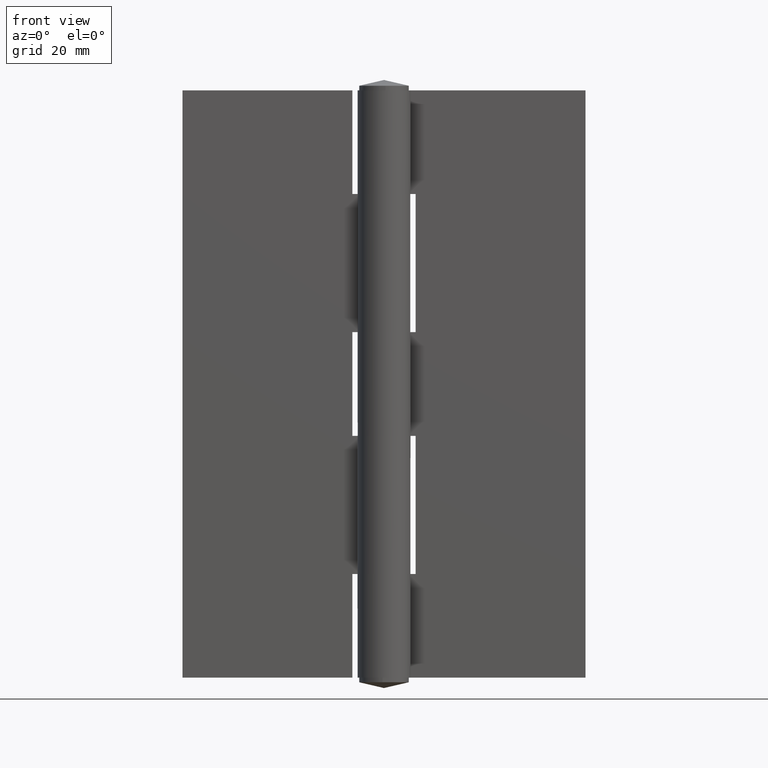
[diagram: clean part render]
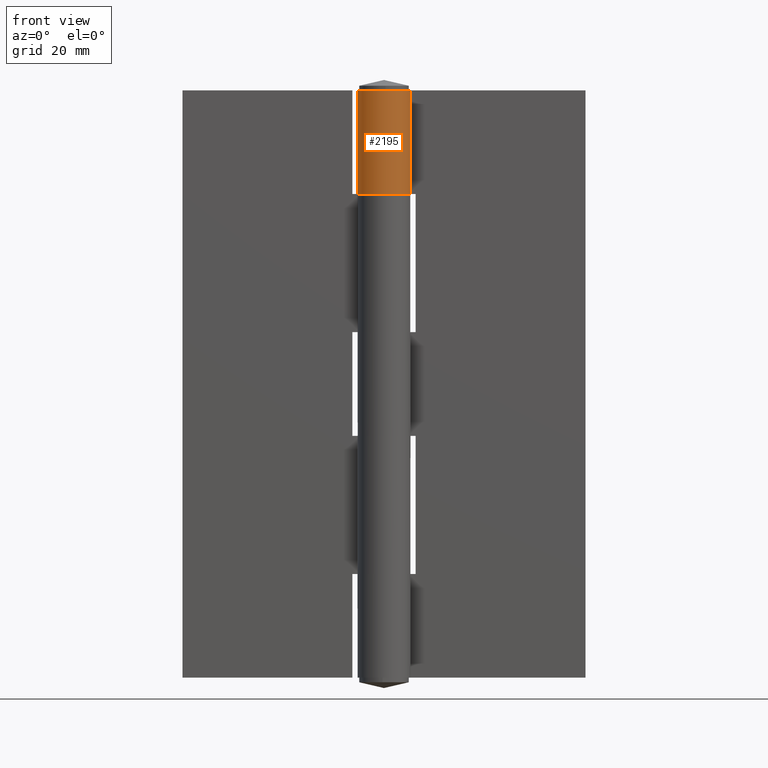
[diagram: same view with one face highlighted and labeled with its STEP entity id]
A machine part, front view. The second image highlights one B-rep face of the part: STEP entity #2195.
In plain terms, the highlighted face is a freeform B-spline surface patch.
Its self-contained STEP definition (entity closure, byte-faithful):
#1741=CARTESIAN_POINT('',(0.004289521635677,4.599998000000000,84.0));
#1742=VERTEX_POINT('',#1741);
#1743=CARTESIAN_POINT('',(0.0,4.599998000000000,84.0));
#1744=VERTEX_POINT('',#1743);
#1745=CARTESIAN_POINT('',(0.004289521635677,4.599998000000000,84.0));
#1746=CARTESIAN_POINT('',(0.0,4.599998000000000,84.0));
#1747=QUASI_UNIFORM_CURVE('',1,(#1745,#1746),.UNSPECIFIED.,.F.,.U.);
#1748=EDGE_CURVE('',#1742,#1744,#1747,.T.);
#1764=CARTESIAN_POINT('',(3.687480305031595,2.749998000000000,84.0));
#1765=VERTEX_POINT('',#1764);
#1771=CARTESIAN_POINT('',(0.0,4.599998000000000,84.0));
#1772=CARTESIAN_POINT('',(-0.529065695877097,4.600330083222903,84.000000000000313));
#1773=CARTESIAN_POINT('',(-1.442654669640415,4.440604888867742,83.999999999999261));
#1774=CARTESIAN_POINT('',(-2.479563977736704,3.913059709740198,84.000000000000171));
#1775=CARTESIAN_POINT('',(-3.233243312080162,3.310559599244706,83.999999999999659));
#1776=CARTESIAN_POINT('',(-3.747315937541000,2.710315675850256,84.000000000000114));
#1777=CARTESIAN_POINT('',(-4.153768299215054,2.017251911377496,83.999999999999943));
#1778=CARTESIAN_POINT('',(-4.493107925015075,1.165328841460526,84.000000000000298));
#1779=CARTESIAN_POINT('',(-4.639727760371360,0.187885907144165,84.000000000000426));
#1780=CARTESIAN_POINT('',(-4.553418047672409,-0.806296018946306,83.999999999998408));
#1781=CARTESIAN_POINT('',(-4.322375173353114,-1.660851063277634,84.000000000005215));
#1782=CARTESIAN_POINT('',(-3.940749991862910,-2.425739038346746,83.999999999997229));
#1783=CARTESIAN_POINT('',(-3.433980852803265,-3.090922798415988,84.000000000000711));
#1784=CARTESIAN_POINT('',(-2.791324394089477,-3.699131383647437,84.000000000001052));
#1785=CARTESIAN_POINT('',(-1.991724876525277,-4.187870648944326,83.999999999999162));
#1786=CARTESIAN_POINT('',(-1.092631377697627,-4.494852546341910,84.000000000001762));
#1787=CARTESIAN_POINT('',(-0.296441602696199,-4.612020171408487,83.999999999999034));
#1788=CARTESIAN_POINT('',(0.459205685819080,-4.595996895770122,83.999999999999346));
#1789=CARTESIAN_POINT('',(1.313923913764197,-4.442342047275807,84.000000000004420));
#1790=CARTESIAN_POINT('',(2.093608524291917,-4.129195385082221,83.999999999989925));
#1791=CARTESIAN_POINT('',(2.808137464504418,-3.665726891401246,84.000000000019980));
#1792=CARTESIAN_POINT('',(3.385162745162106,-3.152587157081054,83.999999999990223));
#1793=CARTESIAN_POINT('',(3.849931909601726,-2.554824176491743,84.000000000004150));
#1794=CARTESIAN_POINT('',(4.280368950449999,-1.764950281191136,83.999999999998195));
#1795=CARTESIAN_POINT('',(4.542909036458256,-0.932246832707574,84.000000000000668));
#1796=CARTESIAN_POINT('',(4.627021064579204,0.045969098248703,83.999999999999943));
#1797=CARTESIAN_POINT('',(4.528357849668606,1.007601691223632,84.000000000000824));
#1798=CARTESIAN_POINT('',(4.211645717522992,1.940962057821234,83.999999999997129));
#1799=CARTESIAN_POINT('',(3.859995306264529,2.518690419582840,84.000000000002856));
#1800=CARTESIAN_POINT('',(3.687480305031595,2.749998000000000,84.0));
#1801=B_SPLINE_CURVE_WITH_KNOTS('',3,(#1771,#1772,#1773,#1774,#1775,#1776,#1777,#1778,#1779,#1780,#1781,#1782,#1783,#1784,#1785,#1786,#1787,#1788,#1789,#1790,#1791,#1792,#1793,#1794,#1795,#1796,#1797,#1798,#1799,#1800),.UNSPECIFIED.,.F.,.U.,(4,1,1,1,1,1,1,1,1,1,1,1,1,1,1,1,1,1,1,1,1,1,1,1,1,1,1,4),(0.000000588857322,1.587103490179221,2.741425250116688,3.462860513762358,4.472879465302945,5.098130009005661,5.867670942353993,7.214245523164401,8.031876338398359,8.849507874153357,9.859510330406179,10.580938814839239,11.350501515481991,12.504686231241800,13.370407570260539,14.188038750857830,14.909485754415639,15.630926083671291,16.785238441829680,17.410488022385110,18.180026439257620,19.093719750135499,19.670910575237219,20.873281408173550,21.690912112148009,22.604723297719261,23.759030989712549,24.624714492442450),.UNSPECIFIED.);
#1802=EDGE_CURVE('',#1744,#1765,#1801,.T.);
#2002=CARTESIAN_POINT('',(3.687480305031595,2.749998000000000,102.0));
#2003=VERTEX_POINT('',#2002);
#2004=CARTESIAN_POINT('',(0.004289521635677,4.599998000000000,102.0));
#2005=VERTEX_POINT('',#2004);
#2006=CARTESIAN_POINT('',(3.687480305031595,2.749998000000000,102.0));
#2007=CARTESIAN_POINT('',(3.927211510749141,2.428723609094700,102.000000000000100));
#2008=CARTESIAN_POINT('',(4.274452478681143,1.807666446828968,102.0));
#2009=CARTESIAN_POINT('',(4.563904127837316,0.801062938972049,101.999999999999900));
#2010=CARTESIAN_POINT('',(4.641745275859672,-0.293166682593220,102.000000000000400));
#2011=CARTESIAN_POINT('',(4.444631093322387,-1.344483292215285,101.999999999999700));
#2012=CARTESIAN_POINT('',(4.069747606463718,-2.182051127960176,102.000000000001610));
#2013=CARTESIAN_POINT('',(3.669540637751711,-2.803304909467177,101.999999999996800));
#2014=CARTESIAN_POINT('',(3.061993616796954,-3.490958211929666,102.000000000004210));
#2015=CARTESIAN_POINT('',(2.119910611308672,-4.151663109770204,101.999999999994800));
#2016=CARTESIAN_POINT('',(1.001968139447950,-4.533623802609680,102.000000000003100));
#2017=CARTESIAN_POINT('',(0.039362056033011,-4.624218141118773,101.999999999999600));
#2018=CARTESIAN_POINT('',(-0.826138380175494,-4.551564768255034,101.999999999997800));
#2019=CARTESIAN_POINT('',(-1.572585326268583,-4.347539330729028,102.000000000003400));
#2020=CARTESIAN_POINT('',(-2.343487056813699,-3.985266175722360,101.999999999986400));
#2021=CARTESIAN_POINT('',(-2.950532434146934,-3.559294591173148,102.000000000008900));
#2022=CARTESIAN_POINT('',(-3.564831155415803,-2.946209996884873,101.999999999991800));
#2023=CARTESIAN_POINT('',(-4.025982631108012,-2.284478622348742,102.000000000001290));
#2024=CARTESIAN_POINT('',(-4.428400536037507,-1.371559944456660,102.000000000035600));
#2025=CARTESIAN_POINT('',(-4.596134502852261,-0.547552910564533,101.999999999921900));
#2026=CARTESIAN_POINT('',(-4.606698867034837,0.303656244815154,102.000000000080210));
#2027=CARTESIAN_POINT('',(-4.497187205602963,1.117283842312249,101.999999999960710));
#2028=CARTESIAN_POINT('',(-4.127978718097616,2.151628531479227,102.000000000020710));
#2029=CARTESIAN_POINT('',(-3.496938861787220,3.055092623379363,101.999999999992600));
#2030=CARTESIAN_POINT('',(-2.690113326263049,3.770962353769562,102.000000000003000));
#2031=CARTESIAN_POINT('',(-1.934567461533822,4.205517496241802,101.999999999994800));
#2032=CARTESIAN_POINT('',(-1.005877002607121,4.521975796858026,102.000000000008800));
#2033=CARTESIAN_POINT('',(-0.380533741865796,4.600471258992432,101.999999999999010));
#2034=CARTESIAN_POINT('',(0.004289521635677,4.599998000000000,102.0));
#2035=B_SPLINE_CURVE_WITH_KNOTS('',3,(#2006,#2007,#2008,#2009,#2010,#2011,#2012,#2013,#2014,#2015,#2016,#2017,#2018,#2019,#2020,#2021,#2022,#2023,#2024,#2025,#2026,#2027,#2028,#2029,#2030,#2031,#2032,#2033,#2034),.UNSPECIFIED.,.F.,.U.,(4,1,1,1,1,1,1,1,1,1,1,1,1,1,1,1,1,1,1,1,1,1,1,1,1,1,4),(0.000000589631696,1.202553539650566,2.116539759411385,3.126732811911751,4.473659067961108,5.291415005010542,5.868693645189932,6.686356769646945,8.033276200480806,9.283984384569882,10.197970048573231,10.919535113568820,11.881609737326890,12.506865659415420,13.468943297713940,14.094303411375400,15.104501967625730,15.874176082925599,17.076773708827311,17.605921236860770,18.423714627829519,19.529988642956230,20.876919416767301,21.694692635032020,22.752999596611449,23.474567878942281,24.629006349111631),.UNSPECIFIED.);
#2036=EDGE_CURVE('',#2003,#2005,#2035,.T.);
#2131=CARTESIAN_POINT('',(3.687480305031595,2.749998000000000,102.0));
#2132=CARTESIAN_POINT('',(3.687480305031595,2.749998000000000,84.0));
#2133=QUASI_UNIFORM_CURVE('',1,(#2131,#2132),.UNSPECIFIED.,.F.,.U.);
#2134=EDGE_CURVE('',#2003,#1765,#2133,.T.);
#2149=CARTESIAN_POINT('',(0.004289521635677,4.599998000000000,102.0));
#2150=CARTESIAN_POINT('',(0.004289521635677,4.599998000000000,84.0));
#2151=QUASI_UNIFORM_CURVE('',1,(#2149,#2150),.UNSPECIFIED.,.F.,.U.);
#2152=EDGE_CURVE('',#2005,#1742,#2151,.T.);
#2166=CARTESIAN_POINT('',(0.124701961586072,4.598309408986805,102.450000000000000));
#2167=CARTESIAN_POINT('',(0.124701961586072,4.598309408986805,83.538749999999979));
#2168=CARTESIAN_POINT('',(-5.725707409654532,4.756967180742968,102.450000000000030));
#2169=CARTESIAN_POINT('',(-5.725707409654532,4.756967180742968,83.538749999999993));
#2170=CARTESIAN_POINT('',(-4.497579982073100,-0.965284571955505,102.450000000000000));
#2171=CARTESIAN_POINT('',(-4.497579982073100,-0.965284571955505,83.538749999999979));
#2172=CARTESIAN_POINT('',(-3.269452554491668,-6.687536324653976,102.450000000000030));
#2173=CARTESIAN_POINT('',(-3.269452554491668,-6.687536324653976,83.538749999999993));
#2174=CARTESIAN_POINT('',(2.000610404051229,-4.142168274129139,102.450000000000000));
#2175=CARTESIAN_POINT('',(2.000610404051229,-4.142168274129139,83.538749999999979));
#2176=CARTESIAN_POINT('',(7.270673362594124,-1.596800223604301,102.450000000000030));
#2177=CARTESIAN_POINT('',(7.270673362594124,-1.596800223604301,83.538749999999993));
#2178=CARTESIAN_POINT('',(3.552200011622225,2.922648640776214,102.450000000000000));
#2179=CARTESIAN_POINT('',(3.552200011622225,2.922648640776214,83.538749999999979));
#2187=(BOUNDED_SURFACE()B_SPLINE_SURFACE(1,2,((#2166,#2168,#2170,#2172,#2174,#2176,#2178),(#2167,#2169,#2171,#2173,#2175,#2177,#2179)),.UNSPECIFIED.,.F.,.F.,.U.)B_SPLINE_SURFACE_WITH_KNOTS((2,2),(3,2,2,3),(0.0,18.911250000000042),(0.0,8.941175215442145,17.882350430884291,26.823525646326441),.UNSPECIFIED.)GEOMETRIC_REPRESENTATION_ITEM()RATIONAL_B_SPLINE_SURFACE(((1.0,0.617951097721073,1.0,0.617951097721073,1.0,0.617951097721073,1.0),(1.0,0.617951097721073,1.0,0.617951097721073,1.0,0.617951097721073,1.0)))REPRESENTATION_ITEM('')SURFACE());
#2188=ORIENTED_EDGE('',*,*,#1748,.T.);
#2189=ORIENTED_EDGE('',*,*,#1802,.T.);
#2190=ORIENTED_EDGE('',*,*,#2134,.F.);
#2191=ORIENTED_EDGE('',*,*,#2036,.T.);
#2192=ORIENTED_EDGE('',*,*,#2152,.T.);
#2193=EDGE_LOOP('',(#2188,#2189,#2190,#2191,#2192));
#2194=FACE_OUTER_BOUND('',#2193,.T.);
#2195=ADVANCED_FACE('',(#2194),#2187,.T.);